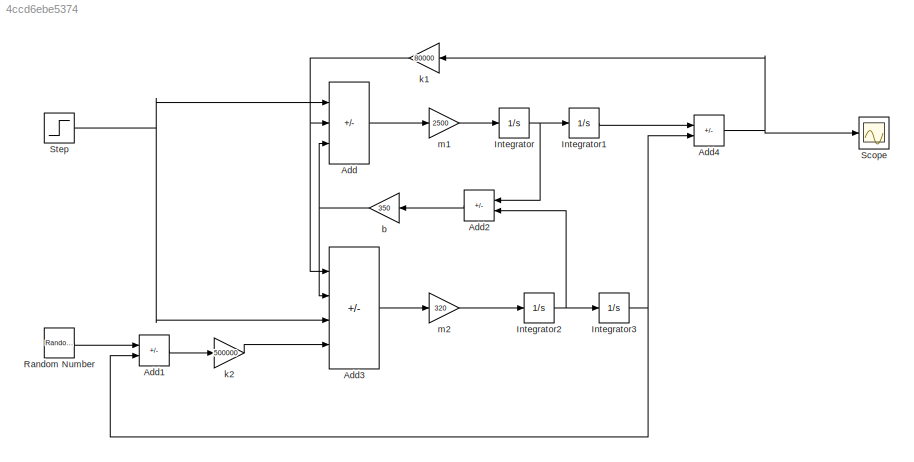
MODEL slx_4ccd6ebe5374
KIND model
CONFIG AbsTol = auto
CONFIG EnableMultiTasking = off
CONFIG FixedStep = auto
CONFIG MaxStep = auto
CONFIG MinStep = auto
CONFIG RelTol = 1e-3
CONFIG SampleTimeConstraint = Unconstrained
CONFIG SolverName = VariableStepAuto
CONFIG StartTime = 0.0
CONFIG StopTime = 10.0
BLOCK [Sum] Add
  IconShape = rectangular
  Inputs = +--
  Ports = [3, 1]
BLOCK [Sum] Add1
  IconShape = rectangular
  Inputs = +-
  Ports = [2, 1]
BLOCK [Sum] Add2
  IconShape = rectangular
  Inputs = +-
  NameLocation = top
  Ports = [2, 1]
BLOCK [Sum] Add3
  IconShape = rectangular
  Inputs = ++-+
  Ports = [4, 1]
BLOCK [Sum] Add4
  IconShape = rectangular
  Inputs = +-
  Ports = [2, 1]
BLOCK [Integrator] Integrator
  Ports = [1, 1]
BLOCK [Integrator] Integrator1
  Ports = [1, 1]
BLOCK [Integrator] Integrator2
  Ports = [1, 1]
BLOCK [Integrator] Integrator3
  Ports = [1, 1]
BLOCK [RandomNumber] Random Number
  SampleTime = 0.1
BLOCK [Scope] Scope
  Floating = off
  NumInputPorts = 1
  Ports = [1]
  ScopeSpecificationString = Simulink.scopes.TimeScopeBlockCfg('CurrentConfiguration', extmgr.ConfigurationSet(extmgr.Configuration('Core','General UI',true),extmgr.Configuration('Core','Source UI',true),extmgr.Configuration('Sources','WiredSimulink',true),extmgr.Configuration('Visuals','Time Domain',true,'SerializedDisplays',{struct('MinYLimReal','-34.07075','MaxYLimReal','4.69167','YLabelReal','','MinYLimMag','0.00000','Max...<+1328ch>
BLOCK [Step] Step
  SampleTime = 0
BLOCK [Gain] b
  Gain = 350
  NameLocation = top
BLOCK [Gain] k1
  Gain = 80000
  NameLocation = top
BLOCK [Gain] k2
  Gain = 500000
BLOCK [Gain] m1
  Gain = 2500
BLOCK [Gain] m2
  Gain = 320
LINE Add1:1 -> k2:1
LINE Add2:1 -> b:1
LINE Add3:1 -> m2:1
NET Add4:1 -> Scope:1, k1:1
LINE Add:1 -> m1:1
LINE Integrator1:1 -> Add4:1
NET Integrator2:1 -> Add2:2, Integrator3:1
NET Integrator3:1 -> Add1:2, Add4:2
NET Integrator:1 -> Add2:1, Integrator1:1
LINE Random Number:1 -> Add1:1
NET Step:1 -> Add3:3, Add:1
NET b:1 -> Add3:2, Add:3
NET k1:1 -> Add3:1, Add:2
LINE k2:1 -> Add3:4
LINE m1:1 -> Integrator:1
LINE m2:1 -> Integrator2:1
note: NET lines group one-source signal fan-out (src -> all destinations, sorted); 1:1 wires keep LINE
